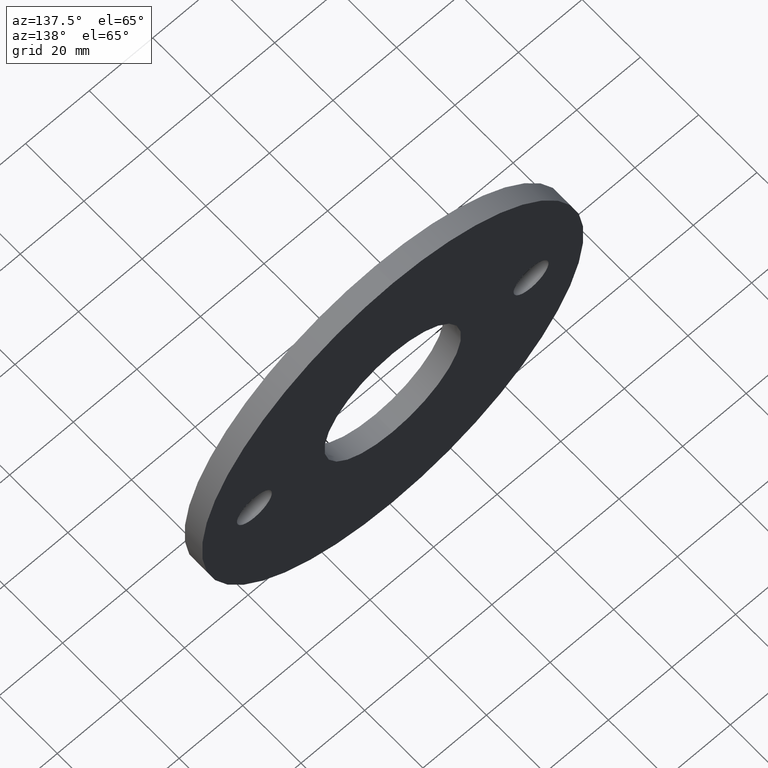
[diagram: clean part render]
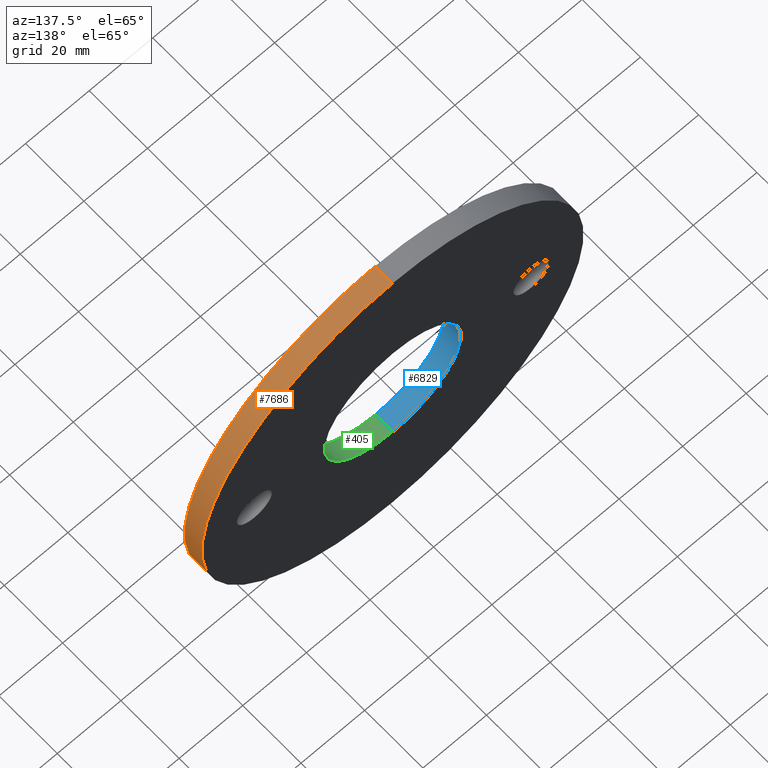
[diagram: same view with three faces highlighted in distinct colors, each labeled with its STEP entity id]
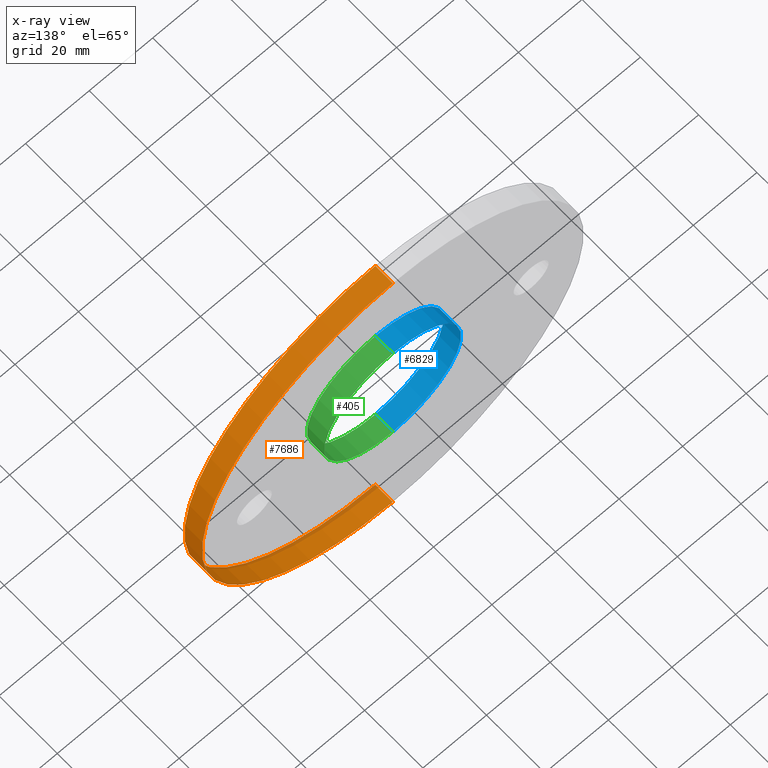
[diagram: x-ray of the same camera — body ghosted, the three highlighted faces saturated]
A machine part, auxiliary view with three faces highlighted in distinct colors.
The next image is the same camera in x-ray (body ghosted, the three faces saturated) — at least one of them is partly hidden behind the body in this view.
Their STEP definitions:

[orange] entity #7686 — the highlighted cylindrical surface (partial cylindrical patch) has radius 60 mm, axis along (-0, -1, -0).
#12 = CARTESIAN_POINT ( 'NONE',  ( 0.0000000000000000000, 0.0000000000000000000, -60.00000000000000000 ) ) ;
#102 = CARTESIAN_POINT ( 'NONE',  ( 7.347880794884118400E-015, 6.000000000000000000, 60.00000000000000000 ) ) ;
#140 = EDGE_LOOP ( 'NONE', ( #7180, #9369, #9374, #4349 ) ) ;
#546 = EDGE_CURVE ( 'NONE', #3763, #6442, #7747, .T. ) ;
#790 = CARTESIAN_POINT ( 'NONE',  ( 0.0000000000000000000, 6.000000000000000000, -60.00000000000000000 ) ) ;
#917 = CIRCLE ( 'NONE', #5253, 60.00000000000000000 ) ;
#1032 = EDGE_CURVE ( 'NONE', #1045, #6442, #10184, .T. ) ;
#1045 = VERTEX_POINT ( 'NONE', #5230 ) ;
#1220 = DIRECTION ( 'NONE',  ( 0.0000000000000000000, 1.000000000000000000, 0.0000000000000000000 ) ) ;
#2390 = DIRECTION ( 'NONE',  ( -0.0000000000000000000, -1.000000000000000000, -0.0000000000000000000 ) ) ;
#3198 = AXIS2_PLACEMENT_3D ( 'NONE', #6079, #1220, #6888 ) ;
#3203 = CARTESIAN_POINT ( 'NONE',  ( 0.0000000000000000000, 6.000000000000000000, 0.0000000000000000000 ) ) ;
#3258 = DIRECTION ( 'NONE',  ( -0.0000000000000000000, -1.000000000000000000, -0.0000000000000000000 ) ) ;
#3763 = VERTEX_POINT ( 'NONE', #5209 ) ;
#4050 = DIRECTION ( 'NONE',  ( -0.0000000000000000000, -1.000000000000000000, -0.0000000000000000000 ) ) ;
#4112 = DIRECTION ( 'NONE',  ( 0.0000000000000000000, 1.000000000000000000, 0.0000000000000000000 ) ) ;
#4182 = EDGE_CURVE ( 'NONE', #8619, #3763, #917, .T. ) ;
#4349 = ORIENTED_EDGE ( 'NONE', *, *, #546, .F. ) ;
#4378 = AXIS2_PLACEMENT_3D ( 'NONE', #3203, #2390, #9017 ) ;
#5209 = CARTESIAN_POINT ( 'NONE',  ( 0.0000000000000000000, 6.000000000000000000, -60.00000000000000000 ) ) ;
#5230 = CARTESIAN_POINT ( 'NONE',  ( 7.347880794884118400E-015, 0.0000000000000000000, 60.00000000000000000 ) ) ;
#5253 = AXIS2_PLACEMENT_3D ( 'NONE', #7291, #4112, #8010 ) ;
#6079 = CARTESIAN_POINT ( 'NONE',  ( 0.0000000000000000000, 0.0000000000000000000, 0.0000000000000000000 ) ) ;
#6442 = VERTEX_POINT ( 'NONE', #12 ) ;
#6888 = DIRECTION ( 'NONE',  ( 0.0000000000000000000, 0.0000000000000000000, 1.000000000000000000 ) ) ;
#7180 = ORIENTED_EDGE ( 'NONE', *, *, #4182, .F. ) ;
#7291 = CARTESIAN_POINT ( 'NONE',  ( 0.0000000000000000000, 6.000000000000000000, 0.0000000000000000000 ) ) ;
#7317 = VECTOR ( 'NONE', #3258, 1000.000000000000000 ) ;
#7509 = CARTESIAN_POINT ( 'NONE',  ( 7.347880794884118400E-015, 6.000000000000000000, 60.00000000000000000 ) ) ;
#7686 = ADVANCED_FACE ( 'NONE', ( #8710 ), #8452, .T. ) ;
#7747 = LINE ( 'NONE', #790, #8913 ) ;
#8010 = DIRECTION ( 'NONE',  ( 0.0000000000000000000, 0.0000000000000000000, 1.000000000000000000 ) ) ;
#8176 = EDGE_CURVE ( 'NONE', #8619, #1045, #9641, .T. ) ;
#8452 = CYLINDRICAL_SURFACE ( 'NONE', #4378, 60.00000000000000000 ) ;
#8619 = VERTEX_POINT ( 'NONE', #7509 ) ;
#8710 = FACE_OUTER_BOUND ( 'NONE', #140, .T. ) ;
#8913 = VECTOR ( 'NONE', #4050, 1000.000000000000000 ) ;
#9017 = DIRECTION ( 'NONE',  ( 0.0000000000000000000, 0.0000000000000000000, -1.000000000000000000 ) ) ;
#9369 = ORIENTED_EDGE ( 'NONE', *, *, #8176, .T. ) ;
#9374 = ORIENTED_EDGE ( 'NONE', *, *, #1032, .T. ) ;
#9641 = LINE ( 'NONE', #102, #7317 ) ;
#10184 = CIRCLE ( 'NONE', #3198, 60.00000000000000000 ) ;

[blue] entity #6829 — the highlighted cylindrical surface (partial cylindrical patch) has radius 21.5 mm, axis along (-0, 1, -0).
#569 = CARTESIAN_POINT ( 'NONE',  ( 2.632990618166809200E-015, 6.000000000000000000, -21.50000000000000000 ) ) ;
#598 = CARTESIAN_POINT ( 'NONE',  ( 0.0000000000000000000, 6.000000000000000000, 0.0000000000000000000 ) ) ;
#794 = ORIENTED_EDGE ( 'NONE', *, *, #3013, .F. ) ;
#1179 = DIRECTION ( 'NONE',  ( -0.0000000000000000000, 1.000000000000000000, -0.0000000000000000000 ) ) ;
#1253 = CARTESIAN_POINT ( 'NONE',  ( 0.0000000000000000000, 0.0000000000000000000, 0.0000000000000000000 ) ) ;
#1271 = CYLINDRICAL_SURFACE ( 'NONE', #4784, 21.50000000000000000 ) ;
#1380 = AXIS2_PLACEMENT_3D ( 'NONE', #1978, #7653, #6865 ) ;
#1497 = ORIENTED_EDGE ( 'NONE', *, *, #10385, .T. ) ;
#1867 = CARTESIAN_POINT ( 'NONE',  ( 0.0000000000000000000, 0.0000000000000000000, 21.50000000000000000 ) ) ;
#1871 = CARTESIAN_POINT ( 'NONE',  ( 2.632990618166809200E-015, 0.0000000000000000000, -21.50000000000000000 ) ) ;
#1978 = CARTESIAN_POINT ( 'NONE',  ( 0.0000000000000000000, 0.0000000000000000000, 0.0000000000000000000 ) ) ;
#2078 = LINE ( 'NONE', #6760, #2331 ) ;
#2273 = DIRECTION ( 'NONE',  ( 0.0000000000000000000, 1.000000000000000000, 0.0000000000000000000 ) ) ;
#2331 = VECTOR ( 'NONE', #7586, 1000.000000000000000 ) ;
#2347 = VERTEX_POINT ( 'NONE', #2495 ) ;
#2495 = CARTESIAN_POINT ( 'NONE',  ( 2.632990618166809200E-015, 0.0000000000000000000, -21.50000000000000000 ) ) ;
#2856 = ORIENTED_EDGE ( 'NONE', *, *, #7134, .T. ) ;
#2869 = DIRECTION ( 'NONE',  ( 0.0000000000000000000, 0.0000000000000000000, 1.000000000000000000 ) ) ;
#3013 = EDGE_CURVE ( 'NONE', #8622, #10127, #2078, .T. ) ;
#3018 = VECTOR ( 'NONE', #5068, 1000.000000000000000 ) ;
#4784 = AXIS2_PLACEMENT_3D ( 'NONE', #1253, #1179, #2869 ) ;
#5068 = DIRECTION ( 'NONE',  ( -0.0000000000000000000, 1.000000000000000000, -0.0000000000000000000 ) ) ;
#5585 = FACE_OUTER_BOUND ( 'NONE', #7873, .T. ) ;
#6234 = VERTEX_POINT ( 'NONE', #569 ) ;
#6460 = LINE ( 'NONE', #1871, #3018 ) ;
#6601 = CIRCLE ( 'NONE', #8977, 21.50000000000000000 ) ;
#6610 = EDGE_CURVE ( 'NONE', #2347, #8622, #9415, .T. ) ;
#6760 = CARTESIAN_POINT ( 'NONE',  ( 0.0000000000000000000, 0.0000000000000000000, 21.50000000000000000 ) ) ;
#6829 = ADVANCED_FACE ( 'NONE', ( #5585 ), #1271, .F. ) ;
#6865 = DIRECTION ( 'NONE',  ( 0.0000000000000000000, 0.0000000000000000000, 1.000000000000000000 ) ) ;
#7134 = EDGE_CURVE ( 'NONE', #2347, #6234, #6460, .T. ) ;
#7586 = DIRECTION ( 'NONE',  ( -0.0000000000000000000, 1.000000000000000000, -0.0000000000000000000 ) ) ;
#7653 = DIRECTION ( 'NONE',  ( 0.0000000000000000000, 1.000000000000000000, 0.0000000000000000000 ) ) ;
#7873 = EDGE_LOOP ( 'NONE', ( #10280, #2856, #1497, #794 ) ) ;
#8622 = VERTEX_POINT ( 'NONE', #1867 ) ;
#8749 = DIRECTION ( 'NONE',  ( 0.0000000000000000000, 0.0000000000000000000, 1.000000000000000000 ) ) ;
#8977 = AXIS2_PLACEMENT_3D ( 'NONE', #598, #2273, #8749 ) ;
#9415 = CIRCLE ( 'NONE', #1380, 21.50000000000000000 ) ;
#10127 = VERTEX_POINT ( 'NONE', #10330 ) ;
#10280 = ORIENTED_EDGE ( 'NONE', *, *, #6610, .F. ) ;
#10330 = CARTESIAN_POINT ( 'NONE',  ( 0.0000000000000000000, 6.000000000000000000, 21.50000000000000000 ) ) ;
#10385 = EDGE_CURVE ( 'NONE', #6234, #10127, #6601, .T. ) ;

[green] entity #405 — the highlighted cylindrical surface (partial cylindrical patch) has radius 21.5 mm, axis along (-0, 1, -0).
#343 = AXIS2_PLACEMENT_3D ( 'NONE', #3823, #1419, #498 ) ;
#405 = ADVANCED_FACE ( 'NONE', ( #3675 ), #3427, .F. ) ;
#498 = DIRECTION ( 'NONE',  ( 0.0000000000000000000, 0.0000000000000000000, 1.000000000000000000 ) ) ;
#569 = CARTESIAN_POINT ( 'NONE',  ( 2.632990618166809200E-015, 6.000000000000000000, -21.50000000000000000 ) ) ;
#795 = CIRCLE ( 'NONE', #10370, 21.50000000000000000 ) ;
#1419 = DIRECTION ( 'NONE',  ( 0.0000000000000000000, 1.000000000000000000, 0.0000000000000000000 ) ) ;
#1867 = CARTESIAN_POINT ( 'NONE',  ( 0.0000000000000000000, 0.0000000000000000000, 21.50000000000000000 ) ) ;
#1871 = CARTESIAN_POINT ( 'NONE',  ( 2.632990618166809200E-015, 0.0000000000000000000, -21.50000000000000000 ) ) ;
#1950 = DIRECTION ( 'NONE',  ( 0.0000000000000000000, 0.0000000000000000000, 1.000000000000000000 ) ) ;
#2072 = CIRCLE ( 'NONE', #343, 21.50000000000000000 ) ;
#2078 = LINE ( 'NONE', #6760, #2331 ) ;
#2331 = VECTOR ( 'NONE', #7586, 1000.000000000000000 ) ;
#2347 = VERTEX_POINT ( 'NONE', #2495 ) ;
#2495 = CARTESIAN_POINT ( 'NONE',  ( 2.632990618166809200E-015, 0.0000000000000000000, -21.50000000000000000 ) ) ;
#2693 = ORIENTED_EDGE ( 'NONE', *, *, #3412, .F. ) ;
#3011 = CARTESIAN_POINT ( 'NONE',  ( 0.0000000000000000000, 0.0000000000000000000, 0.0000000000000000000 ) ) ;
#3013 = EDGE_CURVE ( 'NONE', #8622, #10127, #2078, .T. ) ;
#3018 = VECTOR ( 'NONE', #5068, 1000.000000000000000 ) ;
#3050 = DIRECTION ( 'NONE',  ( -0.0000000000000000000, 1.000000000000000000, -0.0000000000000000000 ) ) ;
#3412 = EDGE_CURVE ( 'NONE', #8622, #2347, #2072, .T. ) ;
#3427 = CYLINDRICAL_SURFACE ( 'NONE', #6456, 21.50000000000000000 ) ;
#3675 = FACE_OUTER_BOUND ( 'NONE', #7954, .T. ) ;
#3727 = EDGE_CURVE ( 'NONE', #10127, #6234, #795, .T. ) ;
#3823 = CARTESIAN_POINT ( 'NONE',  ( 0.0000000000000000000, 0.0000000000000000000, 0.0000000000000000000 ) ) ;
#5068 = DIRECTION ( 'NONE',  ( -0.0000000000000000000, 1.000000000000000000, -0.0000000000000000000 ) ) ;
#5286 = ORIENTED_EDGE ( 'NONE', *, *, #3013, .T. ) ;
#5880 = ORIENTED_EDGE ( 'NONE', *, *, #3727, .T. ) ;
#5919 = DIRECTION ( 'NONE',  ( 0.0000000000000000000, 1.000000000000000000, 0.0000000000000000000 ) ) ;
#6234 = VERTEX_POINT ( 'NONE', #569 ) ;
#6456 = AXIS2_PLACEMENT_3D ( 'NONE', #3011, #3050, #7994 ) ;
#6460 = LINE ( 'NONE', #1871, #3018 ) ;
#6720 = CARTESIAN_POINT ( 'NONE',  ( 0.0000000000000000000, 6.000000000000000000, 0.0000000000000000000 ) ) ;
#6760 = CARTESIAN_POINT ( 'NONE',  ( 0.0000000000000000000, 0.0000000000000000000, 21.50000000000000000 ) ) ;
#7134 = EDGE_CURVE ( 'NONE', #2347, #6234, #6460, .T. ) ;
#7586 = DIRECTION ( 'NONE',  ( -0.0000000000000000000, 1.000000000000000000, -0.0000000000000000000 ) ) ;
#7954 = EDGE_LOOP ( 'NONE', ( #8287, #2693, #5286, #5880 ) ) ;
#7994 = DIRECTION ( 'NONE',  ( 0.0000000000000000000, 0.0000000000000000000, 1.000000000000000000 ) ) ;
#8287 = ORIENTED_EDGE ( 'NONE', *, *, #7134, .F. ) ;
#8622 = VERTEX_POINT ( 'NONE', #1867 ) ;
#10127 = VERTEX_POINT ( 'NONE', #10330 ) ;
#10330 = CARTESIAN_POINT ( 'NONE',  ( 0.0000000000000000000, 6.000000000000000000, 21.50000000000000000 ) ) ;
#10370 = AXIS2_PLACEMENT_3D ( 'NONE', #6720, #5919, #1950 ) ;